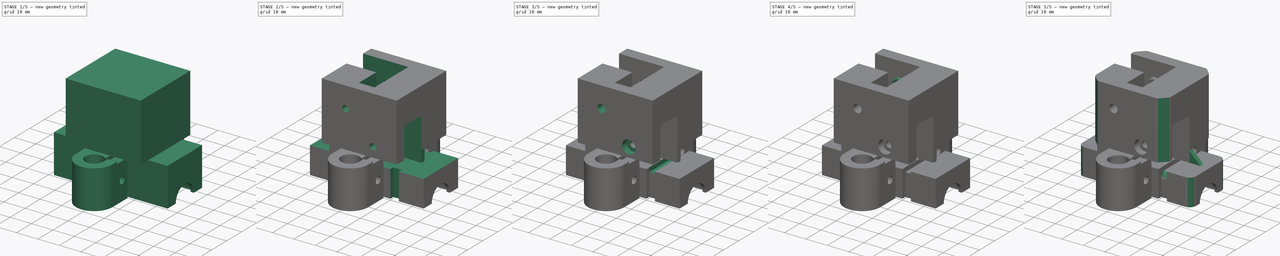
[diagram: build sequence overview — one tinted view per stage of 5, left to right]
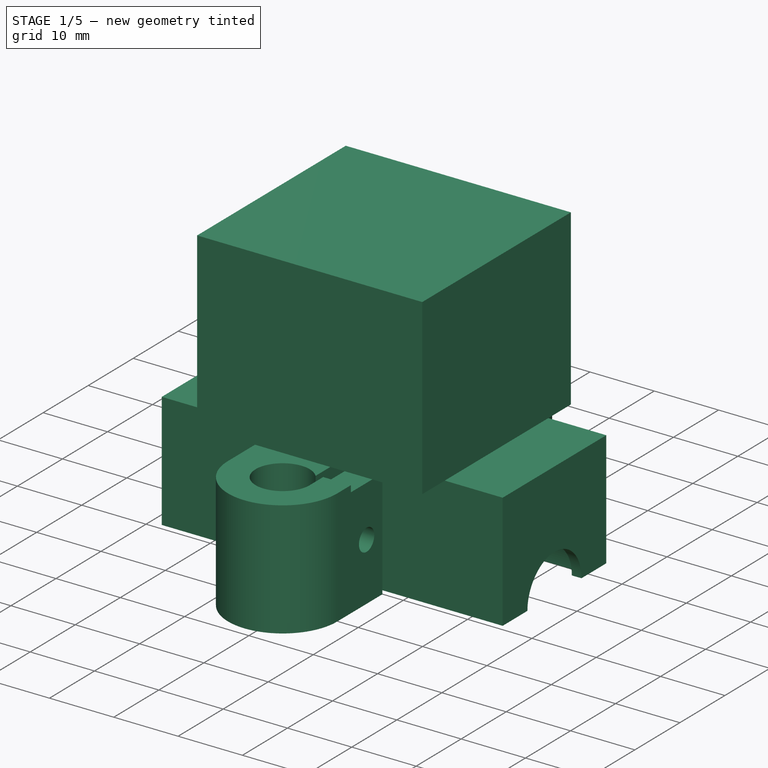
[diagram: stage 1 of 5 — iso view after this stage's code; geometry added in this stage tinted green]
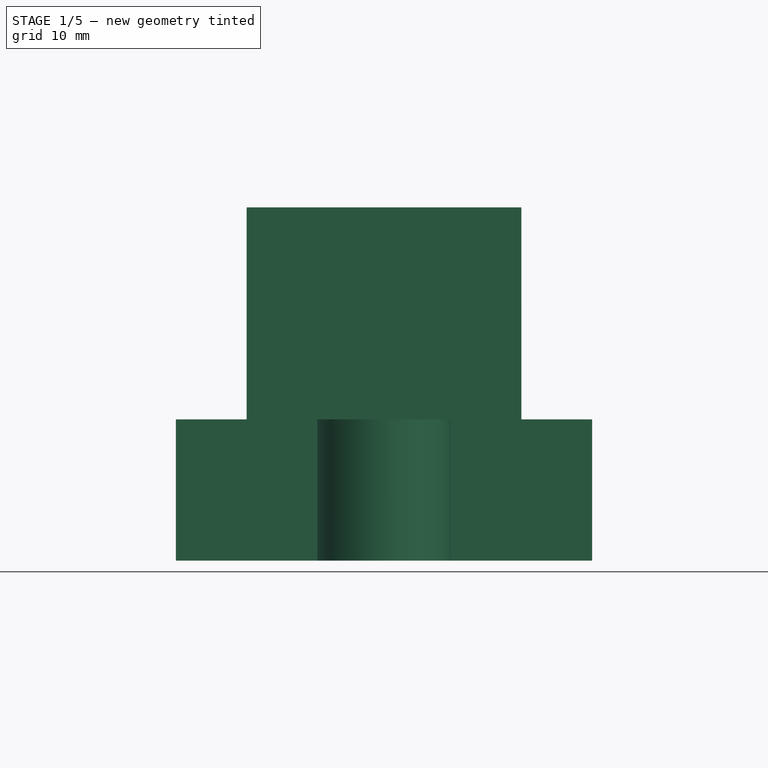
[diagram: stage 1 of 5 — front view after this stage's code; geometry added in this stage tinted green]
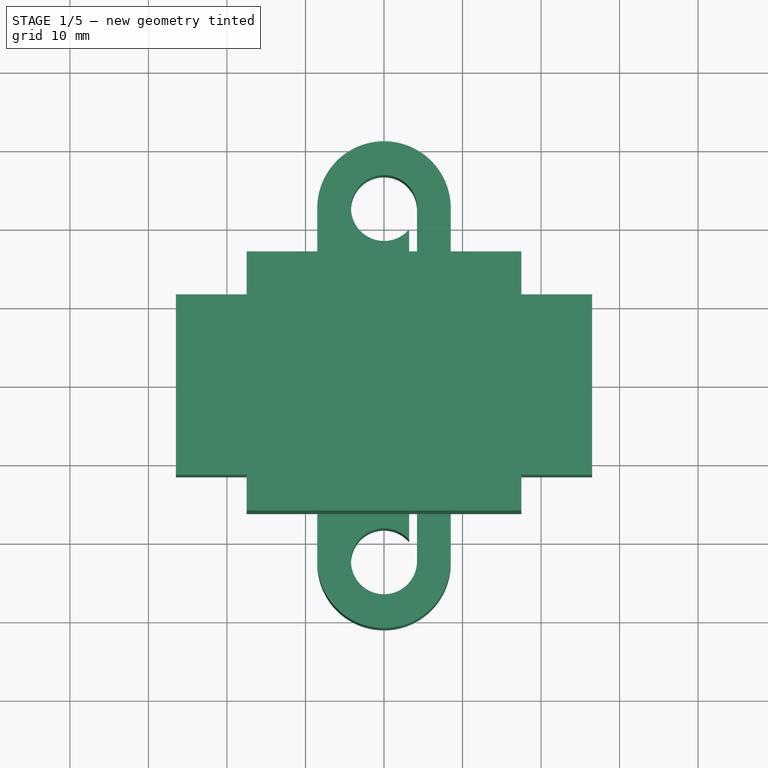
[diagram: stage 1 of 5 — top view after this stage's code; geometry added in this stage tinted green]
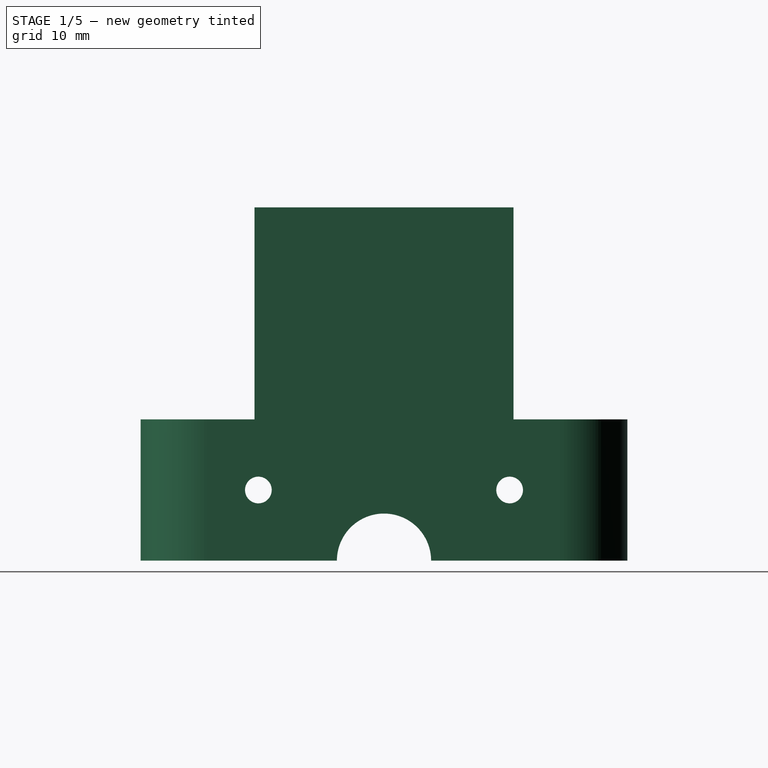
[diagram: stage 1 of 5 — right view after this stage's code; geometry added in this stage tinted green]
FCSTD DOCUMENT  (FreeCAD 0.17R13519 (Git))
Label: Corelia_0_Y_carriage
License: All rights reserved
LicenseURL: http://en.wikipedia.org/wiki/All_rights_reserved
objects: Sketcher::SketchObject×23, PartDesign::Pocket×17, PartDesign::Fillet×7, PartDesign::Pad×6, PartDesign::Chamfer×6, PartDesign::Mirrored×1, PartDesign::Body×1
note: 84 computed .brp shape members not serialized (recipe doc carries the construction recipe); baked Part::Feature solids carry a one-line shape summary decoded from their .brp

FEATURE [Sketcher::SketchObject] Sketch
  MapMode = 5
  Support = -> [XY_Plane]
  sketch-geometry (20):
    g0: ArcOfCircle CenterX=0 CenterY=22.5 CenterZ=0 NormalX=0 NormalY=0 NormalZ=1 AngleXU=0 Radius=4.2 StartAngle=8.19e-09 EndAngle=5.57864
    g1: ArcOfCircle CenterX=0 CenterY=-22.5 CenterZ=0 NormalX=0 NormalY=0 NormalZ=1 AngleXU=0 Radius=4.2 StartAngle=0.704547 EndAngle=6.28319
    g2: LineSegment StartX=-26.5 StartY=11.5 StartZ=0 EndX=-26.5 EndY=-11.5 EndZ=0
    g3: LineSegment StartX=-26.5 StartY=-11.5 StartZ=0 EndX=-8.5 EndY=-11.5 EndZ=0
    g4: LineSegment StartX=-8.5 StartY=-11.5 StartZ=0 EndX=-8.5 EndY=-22.5 EndZ=0
    g5: LineSegment StartX=8.5 StartY=-22.5 StartZ=0 EndX=8.5 EndY=-12.5 EndZ=0
    g6: LineSegment StartX=26.5 StartY=-11.5 StartZ=0 EndX=26.5 EndY=11.5 EndZ=0
    g7: LineSegment StartX=8.5 StartY=12.5 StartZ=0 EndX=8.5 EndY=22.5 EndZ=0
    g8: LineSegment StartX=-8.5 StartY=22.5 StartZ=0 EndX=-8.5 EndY=11.5 EndZ=0
    g9: LineSegment StartX=-8.5 StartY=11.5 StartZ=0 EndX=-26.5 EndY=11.5 EndZ=0
    g10: ArcOfCircle CenterX=0 CenterY=22.5 CenterZ=0 NormalX=0 NormalY=0 NormalZ=1 AngleXU=0 Radius=8.5 StartAngle=0 EndAngle=3.14159
    g11: ArcOfCircle CenterX=0 CenterY=-22.5 CenterZ=0 NormalX=0 NormalY=0 NormalZ=1 AngleXU=0 Radius=8.5 StartAngle=3.14159 EndAngle=6.28319
    g12: LineSegment StartX=4.2 StartY=22.5 StartZ=0 EndX=4.2 EndY=12.5 EndZ=0
    g13: LineSegment StartX=4.2 StartY=12.5 StartZ=0 EndX=8.5 EndY=12.5 EndZ=0
    g14: LineSegment StartX=3.2 StartY=19.7797 StartZ=0 EndX=3.2 EndY=11.5 EndZ=0
    g15: LineSegment StartX=3.2 StartY=11.5 StartZ=0 EndX=26.5 EndY=11.5 EndZ=0
    g16: LineSegment StartX=4.2 StartY=-22.5 StartZ=0 EndX=4.2 EndY=-12.5 EndZ=0
    g17: LineSegment StartX=4.2 StartY=-12.5 StartZ=0 EndX=8.5 EndY=-12.5 EndZ=0
    g18: LineSegment StartX=26.5 StartY=-11.5 StartZ=0 EndX=3.2 EndY=-11.5 EndZ=0
    g19: LineSegment StartX=3.2 StartY=-11.5 StartZ=0 EndX=3.2 EndY=-19.7797 EndZ=0
  constraints (59):
    c: PointOnObject(g0,g-2)
    c: PointOnObject(g1,g-2)
    c: Equal(g1,g0)
    c: Radius(g0) = 4.2
    c: DistanceY(g1,g0) = 45
    c: Symmetric(g0,g1,g-1)
    c: Vertical(g2)
    c: Coincident(g2,g3)
    c: Horizontal(g3)
    c: Coincident(g3,g4)
    c: Vertical(g4)
    c: Vertical(g5)
    c: Vertical(g6)
    c: Vertical(g7)
    c: Vertical(g8)
    c: Coincident(g8,g9)
    c: Coincident(g9,g2)
    c: Horizontal(g9)
    c: Equal(g9,g3)
    c: Equal(g8,g4)
    c: Coincident(g10,g0)
    c: Coincident(g10,g8)
    c: Coincident(g11,g1)
    c: Equal(g10,g11)
    c: Radius(g10) = 8.5
    c: Vertical(g12)
    c: Coincident(g13,g12)
    c: Horizontal(g13)
    c: Vertical(g14)
    c: Coincident(g15,g14)
    c: Horizontal(g15)
    c: Tangent(g12,g0)
    c: Vertical(g16)
    c: Coincident(g16,g17)
    c: Horizontal(g17)
    c: Horizontal(g18)
    c: Coincident(g18,g19)
    c: Vertical(g19)
    c: Tangent(g1,g16)
    c: Coincident(g5,g17)
    c: Coincident(g1,g19)
    c: Coincident(g1,g16)
    c: Tangent(g10,g7) = -1.5708
    c: Coincident(g7,g13)
    c: Coincident(g15,g6)
    c: PointOnObject(g8,g15)
    c: Coincident(g18,g6)
    c: DistanceX(g1,g1) = 1
    c: DistanceY(g5,g6) = 1
    c: Coincident(g0,g12)
    c: Coincident(g0,g14)
    c: Tangent(g11,g5) = -1.5708
    c: Tangent(g11,g4) = -1.5708
    c: DistanceX(g2,g8) = 18
    c: DistanceX(g7,g6) = 18
    c: PointOnObject(g18,g3)
    c: DistanceY(g6,g6) = 23
    c: DistanceY(g6,g7) = 1
    c: DistanceX(g0,g0) = 1
FEATURE [PartDesign::Pad] Pad
  Length = 18
  Length2 = 100
  Profile = -> Sketch
  Type = 0
FEATURE [Sketcher::SketchObject] Sketch001
  MapMode = 5
  Placement = pos=(8.5,0,0) rot=(0.57735,0.57735,0.57735;2.0944rad)
  Support = -> [Pad]
  sketch-geometry (2):
    g0: Circle CenterX=-16 CenterY=9 CenterZ=0 NormalX=0 NormalY=0 NormalZ=1 AngleXU=0 Radius=1.7
    g1: Circle CenterX=16 CenterY=9 CenterZ=0 NormalX=0 NormalY=0 NormalZ=1 AngleXU=0 Radius=1.7
  constraints (5):
    c: Symmetric(g0,g1,g-2)
    c: DistanceX(g0,g1) = 32
    c: DistanceY(g1) = 9
    c: Equal(g0,g1)
    c: Radius(g0) = 1.7
FEATURE [PartDesign::Pocket] Pocket
  BaseFeature = -> Pad
  Length = 5
  Length2 = 100
  Profile = -> Sketch001
  Type = 1
FEATURE [Sketcher::SketchObject] Sketch002
  MapMode = 5
  Placement = pos=(-8.5,0,0) rot=(0.57735,-0.57735,-0.57735;2.0944rad)
  Support = -> [Pocket]
  sketch-geometry (2):
    g0: Circle CenterX=-16 CenterY=9 CenterZ=0 NormalX=0 NormalY=0 NormalZ=1 AngleXU=0 Radius=1.85
    g1: Circle CenterX=16 CenterY=9 CenterZ=0 NormalX=0 NormalY=0 NormalZ=1 AngleXU=0 Radius=1.85
  constraints (5):
    c: Symmetric(g0,g1,g-2)
    c: Radius(g0) = 1.85
    c: Equal(g0,g1)
    c: DistanceY(g0) = 9
    c: DistanceX(g0,g1) = 32
FEATURE [PartDesign::Pocket] Pocket001
  BaseFeature = -> Pocket
  Length = 4
  Length2 = 100
  Profile = -> Sketch002
  Type = 0
FEATURE [Sketcher::SketchObject] Sketch003
  MapMode = 5
  Placement = pos=(0,0,18) rot=(0,0,1;0rad)
  Support = -> [Pocket001]
  sketch-geometry (8):
    g0: LineSegment StartX=4.2 StartY=12.5 StartZ=0 EndX=8.7 EndY=12.5 EndZ=0
    g1: LineSegment StartX=8.7 StartY=12.5 StartZ=0 EndX=8.7 EndY=19.5 EndZ=0
    g2: LineSegment StartX=8.7 StartY=19.5 StartZ=0 EndX=4.2 EndY=19.5 EndZ=0
    g3: LineSegment StartX=4.2 StartY=19.5 StartZ=0 EndX=4.2 EndY=12.5 EndZ=0
    g4: LineSegment StartX=4.2 StartY=-12.5 StartZ=0 EndX=8.7 EndY=-12.5 EndZ=0
    g5: LineSegment StartX=8.7 StartY=-12.5 StartZ=0 EndX=8.7 EndY=-19.5 EndZ=0
    g6: LineSegment StartX=8.7 StartY=-19.5 StartZ=0 EndX=4.2 EndY=-19.5 EndZ=0
    g7: LineSegment StartX=4.2 StartY=-19.5 StartZ=0 EndX=4.2 EndY=-12.5 EndZ=0
  constraints (23):
    c: Coincident(g0,g1)
    c: Coincident(g1,g2)
    c: Coincident(g2,g3)
    c: Coincident(g3,g0)
    c: Horizontal(g0)
    c: Horizontal(g2)
    c: Vertical(g1)
    c: Vertical(g3)
    c: Coincident(g4,g5)
    c: Coincident(g5,g6)
    c: Coincident(g6,g7)
    c: Coincident(g7,g4)
    c: Horizontal(g4)
    c: Horizontal(g6)
    c: Vertical(g5)
    c: Vertical(g7)
    c: DistanceX(g0) = 4.2
    c: DistanceY(g0) = 12.5
    c: DistanceX(g2,g2) = 4.5
    c: DistanceY(g1,g1) = 7
    c: Equal(g0,g4)
    c: Equal(g1,g5)
    c: Symmetric(g0,g4,g-1)
FEATURE [PartDesign::Pocket] Pocket002
  BaseFeature = -> Pocket001
  Length = 1
  Length2 = 100
  Profile = -> Sketch003
  Type = 0
FEATURE [Sketcher::SketchObject] Sketch004
  MapMode = 5
  Placement = pos=(26.5,0,0) rot=(0.57735,0.57735,0.57735;2.0944rad)
  Support = -> [Pocket002]
  sketch-geometry (2):
    g0: ArcOfCircle CenterX=0 CenterY=0 CenterZ=0 NormalX=0 NormalY=0 NormalZ=1 AngleXU=0 Radius=6 StartAngle=0 EndAngle=3.14159
    g1: LineSegment StartX=-6 StartY=0 StartZ=0 EndX=6 EndY=0 EndZ=0
  constraints (6):
    c: Coincident(g0,g-1)
    c: Coincident(g1,g0)
    c: Coincident(g1,g0)
    c: Horizontal(g1)
    c: Radius(g0) = 6
    c: PointOnObject(g0,g-1)
FEATURE [PartDesign::Pocket] Pocket003
  BaseFeature = -> Pocket002
  Length = 5
  Length2 = 100
  Profile = -> Sketch004
  Type = 1
FEATURE [Sketcher::SketchObject] Sketch005
  MapMode = 5
  Placement = pos=(0,0,0) rot=(0.57735,0.57735,0.57735;2.0944rad)
  Support = -> [YZ_Plane]
  sketch-geometry (1):
    g0: Circle CenterX=0 CenterY=0 CenterZ=0 NormalX=0 NormalY=0 NormalZ=1 AngleXU=0 Radius=7.5
  constraints (2):
    c: Coincident(g0,g-1)
    c: Radius(g0) = 7.5
FEATURE [PartDesign::Pocket] Pocket004
  BaseFeature = -> Pocket003
  Length = 50
  Length2 = 100
  Midplane = true
  Profile = -> Sketch005
  Type = 0
FEATURE [Sketcher::SketchObject] Sketch006
  MapMode = 5
  Placement = pos=(0,0,18) rot=(0,0,1;0rad)
  Support = -> [Pocket004]
  sketch-geometry (4):
    g0: LineSegment StartX=-17.5 StartY=16.5 StartZ=0 EndX=17.5 EndY=16.5 EndZ=0
    g1: LineSegment StartX=17.5 StartY=16.5 StartZ=0 EndX=17.5 EndY=-16.5 EndZ=0
    g2: LineSegment StartX=17.5 StartY=-16.5 StartZ=0 EndX=-17.5 EndY=-16.5 EndZ=0
    g3: LineSegment StartX=-17.5 StartY=-16.5 StartZ=0 EndX=-17.5 EndY=16.5 EndZ=0
  constraints (12):
    c: Coincident(g0,g1)
    c: Coincident(g1,g2)
    c: Coincident(g2,g3)
    c: Coincident(g3,g0)
    c: Horizontal(g0)
    c: Horizontal(g2)
    c: Vertical(g1)
    c: Vertical(g3)
    c: DistanceX(g0,g0) = 35
    c: DistanceY(g1,g1) = 33
    c: Symmetric(g0,g0,g-2)
    c: Symmetric(g2,g0,g-1)
FEATURE [PartDesign::Pad] Pad001
  BaseFeature = -> Pocket004
  Length = 27
  Length2 = 100
  Profile = -> Sketch006
  Type = 0
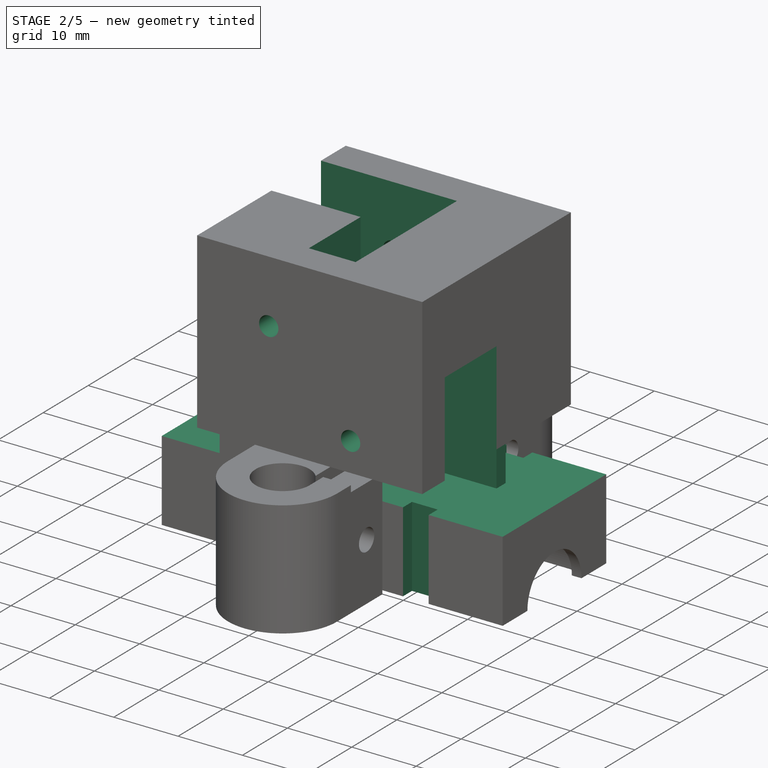
[diagram: stage 2 of 5 — iso view after this stage's code; geometry added in this stage tinted green]
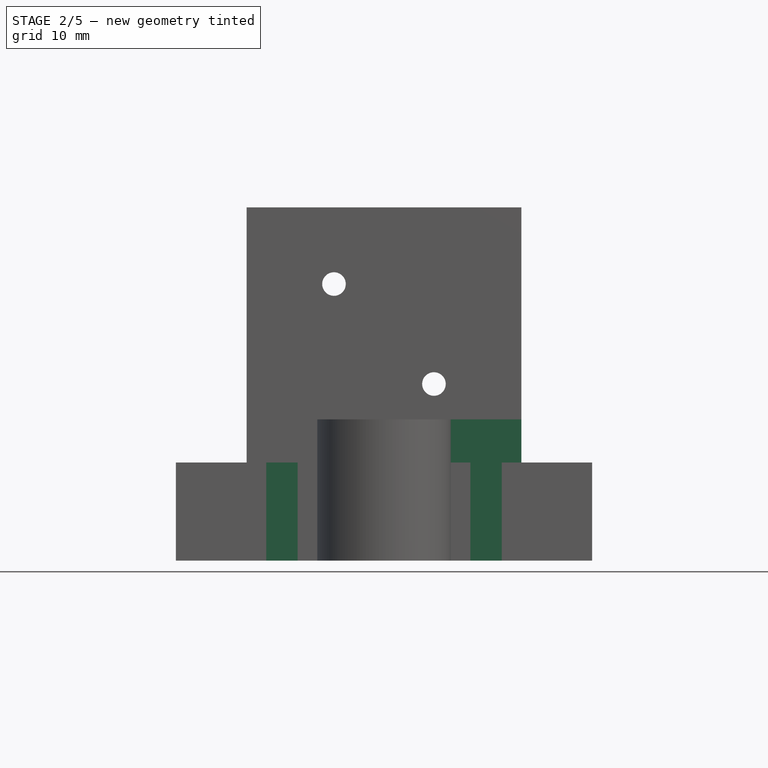
[diagram: stage 2 of 5 — front view after this stage's code; geometry added in this stage tinted green]
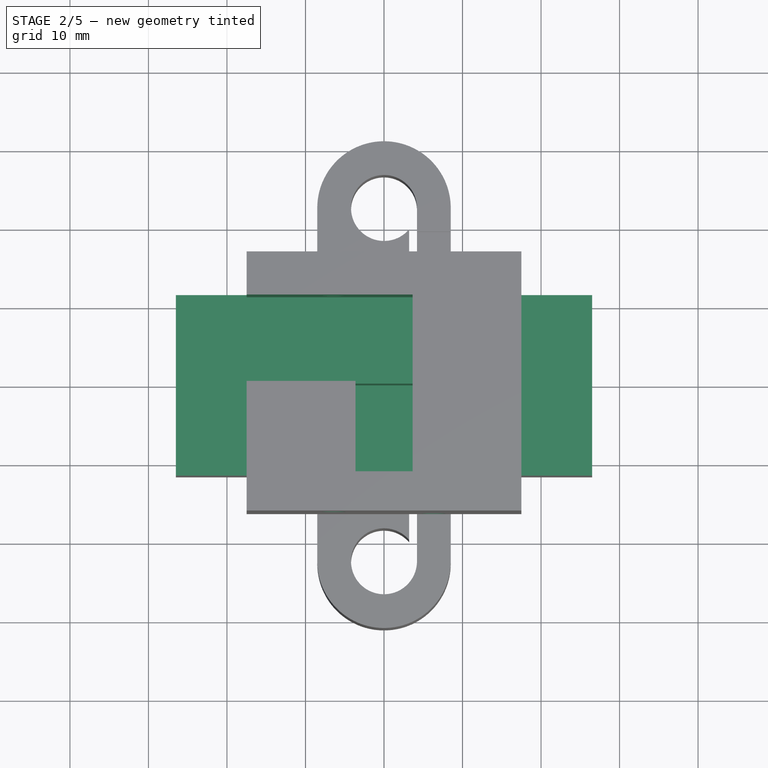
[diagram: stage 2 of 5 — top view after this stage's code; geometry added in this stage tinted green]
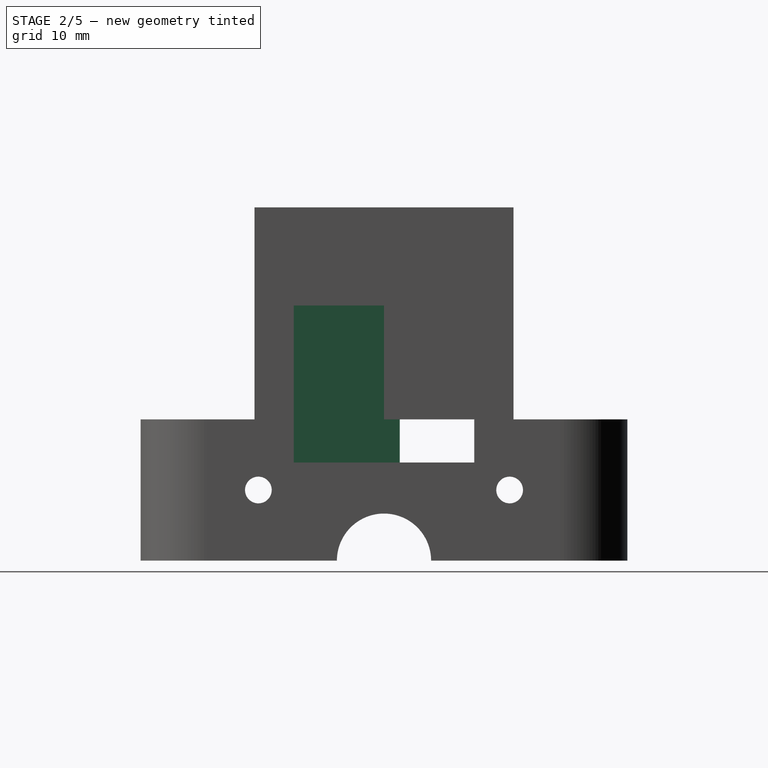
[diagram: stage 2 of 5 — right view after this stage's code; geometry added in this stage tinted green]
FEATURE [Sketcher::SketchObject] Sketch007
  MapMode = 5
  Placement = pos=(26.5,0,0) rot=(0.57735,0.57735,0.57735;2.0944rad)
  Support = -> [Pad001]
  sketch-geometry (4):
    g0: LineSegment StartX=-11.5 StartY=19 StartZ=0 EndX=11.5 EndY=19 EndZ=0
    g1: LineSegment StartX=11.5 StartY=19 StartZ=0 EndX=11.5 EndY=12.5 EndZ=0
    g2: LineSegment StartX=11.5 StartY=12.5 StartZ=0 EndX=-11.5 EndY=12.5 EndZ=0
    g3: LineSegment StartX=-11.5 StartY=12.5 StartZ=0 EndX=-11.5 EndY=19 EndZ=0
  constraints (12):
    c: Coincident(g0,g1)
    c: Coincident(g1,g2)
    c: Coincident(g2,g3)
    c: Coincident(g3,g0)
    c: Horizontal(g0)
    c: Horizontal(g2)
    c: Vertical(g1)
    c: Vertical(g3)
    c: DistanceY(g1,g1) = 6.5
    c: DistanceX(g1) = 11.5
    c: DistanceY(g1) = 12.5
    c: DistanceX(g0,g0) = 23
FEATURE [PartDesign::Pocket] Pocket005
  BaseFeature = -> Pad001
  Length = 0
  Length2 = 100
  Profile = -> Sketch007
  Type = 3
  UpToFace = -> Pad001 [Face34]
FEATURE [PartDesign::Mirrored] Mirrored
  BaseFeature = -> Pocket005
  MirrorPlane = -> YZ_Plane
  Originals = -> [Pocket005]
FEATURE [Sketcher::SketchObject] Sketch008
  MapMode = 5
  Placement = pos=(17.5,0,0) rot=(0.57735,0.57735,0.57735;2.0944rad)
  Support = -> [Mirrored]
  sketch-geometry (4):
    g0: LineSegment StartX=2 StartY=18 StartZ=0 EndX=11.5 EndY=18 EndZ=0
    g1: LineSegment StartX=11.5 StartY=18 StartZ=0 EndX=11.5 EndY=12.5 EndZ=0
    g2: LineSegment StartX=11.5 StartY=12.5 StartZ=0 EndX=2 EndY=12.5 EndZ=0
    g3: LineSegment StartX=2 StartY=12.5 StartZ=0 EndX=2 EndY=18 EndZ=0
  constraints (12):
    c: Coincident(g0,g1)
    c: Coincident(g1,g2)
    c: Coincident(g2,g3)
    c: Coincident(g3,g0)
    c: Horizontal(g0)
    c: Horizontal(g2)
    c: Vertical(g1)
    c: Vertical(g3)
    c: DistanceX(g0,g0) = 9.5
    c: DistanceY(g1,g1) = 5.5
    c: DistanceX(g2) = 2
    c: DistanceY(g2) = 12.5
FEATURE [PartDesign::Pocket] Pocket006
  BaseFeature = -> Mirrored
  Length = 5
  Length2 = 100
  Profile = -> Sketch008
  Type = 1
FEATURE [Sketcher::SketchObject] Sketch009
  MapMode = 5
  Placement = pos=(17.5,0,0) rot=(0.57735,0.57735,0.57735;2.0944rad)
  Support = -> [Pocket006]
  sketch-geometry (4):
    g0: LineSegment StartX=-11.5 StartY=32.5 StartZ=0 EndX=0 EndY=32.5 EndZ=0
    g1: LineSegment StartX=0 StartY=32.5 StartZ=0 EndX=0 EndY=12.5 EndZ=0
    g2: LineSegment StartX=0 StartY=12.5 StartZ=0 EndX=-11.5 EndY=12.5 EndZ=0
    g3: LineSegment StartX=-11.5 StartY=12.5 StartZ=0 EndX=-11.5 EndY=32.5 EndZ=0
  constraints (12):
    c: Coincident(g0,g1)
    c: Coincident(g1,g2)
    c: Coincident(g2,g3)
    c: Coincident(g3,g0)
    c: Horizontal(g0)
    c: Horizontal(g2)
    c: Vertical(g1)
    c: Vertical(g3)
    c: DistanceX(g0,g0) = 11.5
    c: DistanceY(g3,g3) = 20
    c: DistanceY(g1) = 12.5
    c: PointOnObject(g1,g-2)
FEATURE [PartDesign::Pocket] Pocket007
  BaseFeature = -> Pocket006
  Length = 21.14
  Length2 = 100
  Profile = -> Sketch009
  Type = 0
FEATURE [Sketcher::SketchObject] Sketch010
  MapMode = 5
  Placement = pos=(-17.5,0,0) rot=(0.57735,-0.57735,-0.57735;2.0944rad)
  Support = -> [Pocket007]
  sketch-geometry (4):
    g0: LineSegment StartX=-11 StartY=45 StartZ=0 EndX=0 EndY=45 EndZ=0
    g1: LineSegment StartX=0 StartY=45 StartZ=0 EndX=0 EndY=25.23 EndZ=0
    g2: LineSegment StartX=0 StartY=25.23 StartZ=0 EndX=-11 EndY=25.23 EndZ=0
    g3: LineSegment StartX=-11 StartY=25.23 StartZ=0 EndX=-11 EndY=45 EndZ=0
  constraints (12):
    c: Coincident(g0,g1)
    c: Coincident(g1,g2)
    c: Coincident(g2,g3)
    c: Coincident(g3,g0)
    c: Horizontal(g0)
    c: Horizontal(g2)
    c: Vertical(g1)
    c: Vertical(g3)
    c: DistanceY(g3,g3) = 19.77
    c: DistanceX(g0,g0) = 11
    c: PointOnObject(g1,g-2)
    c: DistanceY(g1) = 25.23
FEATURE [PartDesign::Pocket] Pocket008
  BaseFeature = -> Pocket007
  Length = 21.14
  Length2 = 100
  Profile = -> Sketch010
  Type = 0
FEATURE [Sketcher::SketchObject] Sketch011
  MapMode = 5
  Placement = pos=(0,0,45) rot=(0,0,1;0rad)
  Support = -> [Pocket008]
  sketch-geometry (4):
    g0: LineSegment StartX=-3.63 StartY=-11.5 StartZ=0 EndX=3.64 EndY=-11.5 EndZ=0
    g1: LineSegment StartX=3.64 StartY=-11.5 StartZ=0 EndX=3.64 EndY=0 EndZ=0
    g2: LineSegment StartX=3.64 StartY=0 StartZ=0 EndX=-3.63 EndY=0 EndZ=0
    g3: LineSegment StartX=-3.63 StartY=0 StartZ=0 EndX=-3.63 EndY=-11.5 EndZ=0
  constraints (12):
    c: Coincident(g0,g1)
    c: Coincident(g1,g2)
    c: Coincident(g2,g3)
    c: Coincident(g3,g0)
    c: Horizontal(g0)
    c: Horizontal(g2)
    c: Vertical(g1)
    c: Vertical(g3)
    c: PointOnObject(g2,g-1)
    c: DistanceX(g1) = 3.64
    c: DistanceX(g2,g1) = 7.27
    c: DistanceY(g3,g3) = 11.5
FEATURE [PartDesign::Pocket] Pocket009
  BaseFeature = -> Pocket008
  Length = 0
  Length2 = 100
  Profile = -> Sketch011
  Type = 3
  UpToFace = -> Pocket008 [Face50]
FEATURE [Sketcher::SketchObject] Sketch012
  MapMode = 5
  Placement = pos=(0,16.5,0) rot=(0,0.707107,0.707107;3.14159rad)
  Support = -> [Pocket009]
  sketch-geometry (2):
    g0: Circle CenterX=-6.36 CenterY=22.5 CenterZ=0 NormalX=0 NormalY=0 NormalZ=1 AngleXU=0 Radius=1.5
    g1: Circle CenterX=6.37 CenterY=35.23 CenterZ=0 NormalX=0 NormalY=0 NormalZ=1 AngleXU=0 Radius=1.5
  constraints (6):
    c: Equal(g0,g1)
    c: DistanceX(g1) = 6.37
    c: DistanceY(g1) = 35.23
    c: DistanceX(g0) = -6.36
    c: DistanceY(g0) = 22.5
    c: Radius(g1) = 1.5
FEATURE [PartDesign::Pocket] Pocket010
  BaseFeature = -> Pocket009
  Length = 5
  Length2 = 100
  Profile = -> Sketch012
  Type = 1
FEATURE [Sketcher::SketchObject] Sketch013
  MapMode = 5
  Placement = pos=(0,0,0) rot=(1,0,0;3.14159rad)
  Support = -> [Pocket010]
  sketch-geometry (16):
    g0: LineSegment StartX=-15 StartY=11.5 StartZ=0 EndX=-11 EndY=11.5 EndZ=0
    g1: LineSegment StartX=-11 StartY=11.5 StartZ=0 EndX=-11 EndY=9.5 EndZ=0
    g2: LineSegment StartX=-11 StartY=9.5 StartZ=0 EndX=-15 EndY=9.5 EndZ=0
    g3: LineSegment StartX=-15 StartY=9.5 StartZ=0 EndX=-15 EndY=11.5 EndZ=0
    g4: LineSegment StartX=-15 StartY=-9.5 StartZ=0 EndX=-11 EndY=-9.5 EndZ=0
    g5: LineSegment StartX=-11 StartY=-9.5 StartZ=0 EndX=-11 EndY=-11.5 EndZ=0
    g6: LineSegment StartX=-11 StartY=-11.5 StartZ=0 EndX=-15 EndY=-11.5 EndZ=0
    g7: LineSegment StartX=-15 StartY=-11.5 StartZ=0 EndX=-15 EndY=-9.5 EndZ=0
    g8: LineSegment StartX=11 StartY=11.5 StartZ=0 EndX=15 EndY=11.5 EndZ=0
    g9: LineSegment StartX=15 StartY=11.5 StartZ=0 EndX=15 EndY=9.5 EndZ=0
    g10: LineSegment StartX=15 StartY=9.5 StartZ=0 EndX=11 EndY=9.5 EndZ=0
    g11: LineSegment StartX=11 StartY=9.5 StartZ=0 EndX=11 EndY=11.5 EndZ=0
    g12: LineSegment StartX=11 StartY=-9.5 StartZ=0 EndX=15 EndY=-9.5 EndZ=0
    g13: LineSegment StartX=15 StartY=-9.5 StartZ=0 EndX=15 EndY=-11.5 EndZ=0
    g14: LineSegment StartX=15 StartY=-11.5 StartZ=0 EndX=11 EndY=-11.5 EndZ=0
    g15: LineSegment StartX=11 StartY=-11.5 StartZ=0 EndX=11 EndY=-9.5 EndZ=0
  constraints (45):
    c: Coincident(g0,g1)
    c: Coincident(g1,g2)
    c: Coincident(g2,g3)
    c: Coincident(g3,g0)
    c: Horizontal(g0)
    c: Horizontal(g2)
    c: Vertical(g1)
    c: Vertical(g3)
    c: Coincident(g4,g5)
    c: Coincident(g5,g6)
    c: Coincident(g6,g7)
    c: Coincident(g7,g4)
    c: Horizontal(g4)
    c: Horizontal(g6)
    c: Vertical(g5)
    c: Vertical(g7)
    c: Coincident(g8,g9)
    c: Coincident(g9,g10)
    c: Coincident(g10,g11)
    c: Coincident(g11,g8)
    c: Horizontal(g8)
    c: Horizontal(g10)
    c: Vertical(g9)
    c: Vertical(g11)
    c: Coincident(g12,g13)
    c: Coincident(g13,g14)
    c: Coincident(g14,g15)
    c: Coincident(g15,g12)
    c: Horizontal(g12)
    c: Horizontal(g14)
    c: Vertical(g13)
    c: Vertical(g15)
    c: DistanceX(g0,g0) = 4
    c: DistanceY(g3,g3) = 2
    c: DistanceX(g1) = -11
    c: DistanceY(g1) = 9.5
    c: Equal(g1,g11)
    c: Equal(g0,g8)
    c: Equal(g1,g5)
    c: Equal(g5,g15)
    c: Equal(g0,g4)
    c: Equal(g4,g12)
    c: Symmetric(g4,g1,g-1)
    c: Symmetric(g10,g1,g-2)
    c: Symmetric(g4,g12,g-2)
FEATURE [PartDesign::Pocket] Pocket011
  BaseFeature = -> Pocket010
  Length = 12.5
  Length2 = 100
  Profile = -> Sketch013
  Type = 0
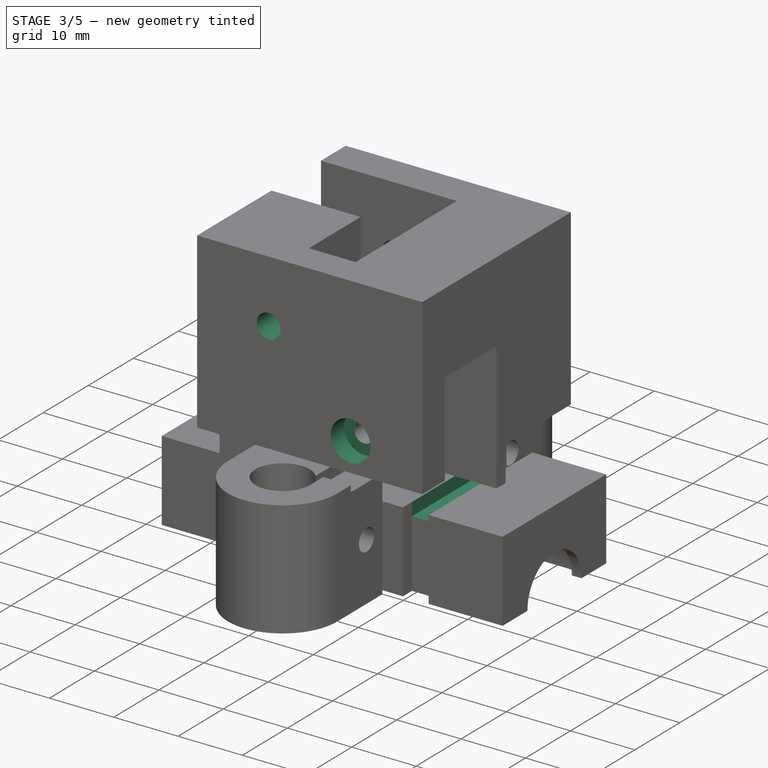
[diagram: stage 3 of 5 — iso view after this stage's code; geometry added in this stage tinted green]
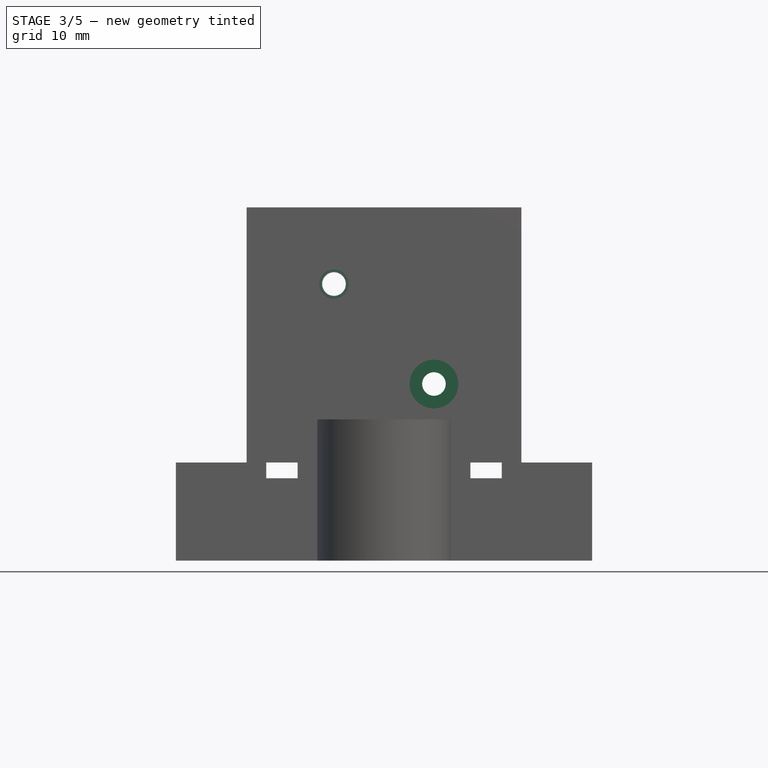
[diagram: stage 3 of 5 — front view after this stage's code; geometry added in this stage tinted green]
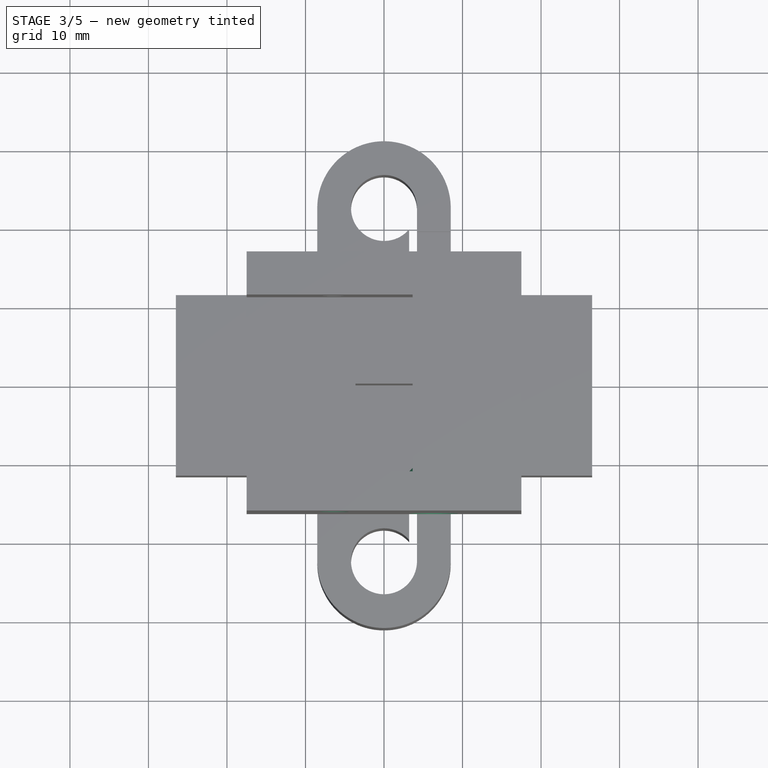
[diagram: stage 3 of 5 — top view after this stage's code; geometry added in this stage tinted green]
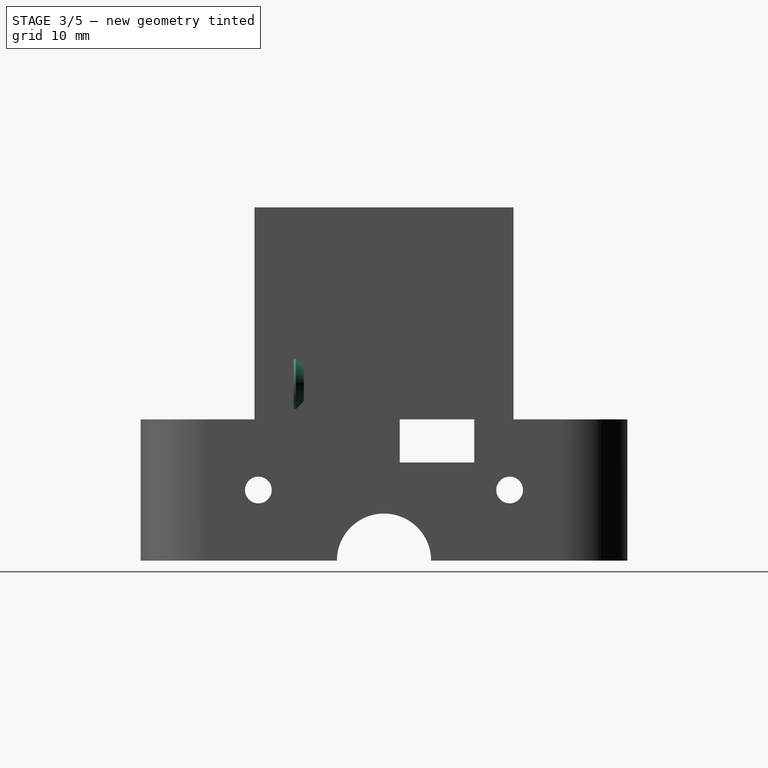
[diagram: stage 3 of 5 — right view after this stage's code; geometry added in this stage tinted green]
FEATURE [Sketcher::SketchObject] Sketch014
  MapMode = 5
  Placement = pos=(0,11.5,0) rot=(0,0.707107,0.707107;3.14159rad)
  Support = -> [Pocket011]
  sketch-geometry (8):
    g0: LineSegment StartX=-11 StartY=12.5 StartZ=0 EndX=-15 EndY=12.5 EndZ=0
    g1: LineSegment StartX=-15 StartY=12.5 StartZ=0 EndX=-15 EndY=10.5 EndZ=0
    g2: LineSegment StartX=-15 StartY=10.5 StartZ=0 EndX=-11 EndY=10.5 EndZ=0
    g3: LineSegment StartX=-11 StartY=10.5 StartZ=0 EndX=-11 EndY=12.5 EndZ=0
    g4: LineSegment StartX=11 StartY=12.5 StartZ=0 EndX=15 EndY=12.5 EndZ=0
    g5: LineSegment StartX=15 StartY=12.5 StartZ=0 EndX=15 EndY=10.5 EndZ=0
    g6: LineSegment StartX=15 StartY=10.5 StartZ=0 EndX=11 EndY=10.5 EndZ=0
    g7: LineSegment StartX=11 StartY=10.5 StartZ=0 EndX=11 EndY=12.5 EndZ=0
  constraints (23):
    c: Coincident(g0,g1)
    c: Coincident(g1,g2)
    c: Coincident(g2,g3)
    c: Coincident(g3,g0)
    c: Horizontal(g0)
    c: Horizontal(g2)
    c: Vertical(g1)
    c: Vertical(g3)
    c: Coincident(g4,g5)
    c: Coincident(g5,g6)
    c: Coincident(g6,g7)
    c: Coincident(g7,g4)
    c: Horizontal(g4)
    c: Horizontal(g6)
    c: Vertical(g5)
    c: Vertical(g7)
    c: DistanceX(g0,g0) = 4
    c: DistanceY(g1,g1) = 2
    c: Equal(g3,g7)
    c: Equal(g0,g4)
    c: Symmetric(g0,g4,g-2)
    c: DistanceX(g0) = -11
    c: DistanceY(g0) = 12.5
FEATURE [PartDesign::Pocket] Pocket012
  BaseFeature = -> Pocket011
  Length = 5
  Length2 = 100
  Profile = -> Sketch014
  Type = 1
FEATURE [Sketcher::SketchObject] Sketch015
  MapMode = 5
  Placement = pos=(0,16.5,0) rot=(0,0.707107,0.707107;3.14159rad)
  Support = -> [Pocket012]
  sketch-geometry (1):
    g0: Circle CenterX=-6.36 CenterY=22.5 CenterZ=0 NormalX=0 NormalY=0 NormalZ=1 AngleXU=0 Radius=1.85
  constraints (3):
    c: DistanceX(g0) = -6.36
    c: DistanceY(g0) = 22.5
    c: Radius(g0) = 1.85
FEATURE [PartDesign::Pocket] Pocket013
  BaseFeature = -> Pocket012
  Length = 5.2
  Length2 = 100
  Profile = -> Sketch015
  Type = 0
FEATURE [Sketcher::SketchObject] Sketch016
  MapMode = 5
  Placement = pos=(0,16.5,0) rot=(0,0.707107,0.707107;3.14159rad)
  Support = -> [Pocket013]
  sketch-geometry (1):
    g0: Circle CenterX=6.37 CenterY=35.23 CenterZ=0 NormalX=0 NormalY=0 NormalZ=1 AngleXU=0 Radius=3.1
  constraints (3):
    c: DistanceX(g0) = 6.37
    c: DistanceY(g0) = 35.23
    c: Radius(g0) = 3.1
FEATURE [PartDesign::Pocket] Pocket014
  BaseFeature = -> Pocket013
  Length = 3
  Length2 = 100
  Profile = -> Sketch016
  Type = 0
FEATURE [Sketcher::SketchObject] Sketch018
  MapMode = 5
  Placement = pos=(0,-16.5,0) rot=(1,0,0;1.5708rad)
  sketch-geometry (1):
    g0: Circle CenterX=6.36 CenterY=22.5 CenterZ=0 NormalX=0 NormalY=0 NormalZ=1 AngleXU=0 Radius=3.1
  constraints (1):
    c: Radius(g0) = 3.1
FEATURE [PartDesign::Pocket] Pocket016
  BaseFeature = -> Pocket014
  Length = 3
  Length2 = 100
  Profile = -> Sketch018
  Type = 0
FEATURE [Sketcher::SketchObject] Sketch019
  MapMode = 5
  Placement = pos=(0,-16.5,0) rot=(1,0,0;1.5708rad)
  Support = -> [Pocket016]
  sketch-geometry (1):
    g0: Circle CenterX=-6.37 CenterY=35.23 CenterZ=0 NormalX=0 NormalY=0 NormalZ=1 AngleXU=0 Radius=1.85
  constraints (3):
    c: DistanceX(g0) = -6.37
    c: DistanceY(g0) = 35.23
    c: Radius(g0) = 1.85
FEATURE [PartDesign::Pocket] Pocket017
  BaseFeature = -> Pocket016
  Length = 5.2
  Length2 = 100
  Profile = -> Sketch019
  Type = 0
FEATURE [Sketcher::SketchObject] Sketch020
  MapMode = 5
  Placement = pos=(0,-11.5,0) rot=(0,0.707107,0.707107;3.14159rad)
  Support = -> [Pocket017]
  sketch-geometry (2):
    g0: Circle CenterX=-6.36 CenterY=22.5 CenterZ=0 NormalX=0 NormalY=0 NormalZ=1 AngleXU=0 Radius=3.2
    g1: Circle CenterX=-6.36 CenterY=22.5 CenterZ=0 NormalX=0 NormalY=0 NormalZ=1 AngleXU=0 Radius=1.5
  constraints (5):
    c: DistanceX(g0) = -6.36
    c: DistanceY(g0) = 22.5
    c: Coincident(g1,g0)
    c: Radius(g1) = 1.5
    c: Radius(g0) = 3.2
FEATURE [PartDesign::Pad] Pad002
  BaseFeature = -> Pocket017
  Length = 1.3
  Length2 = 100
  Profile = -> Sketch020
  Type = 0
FEATURE [PartDesign::Chamfer] Chamfer
  Base = -> Pad002 [Edge317]
  BaseFeature = -> Pad002
  Size = 1
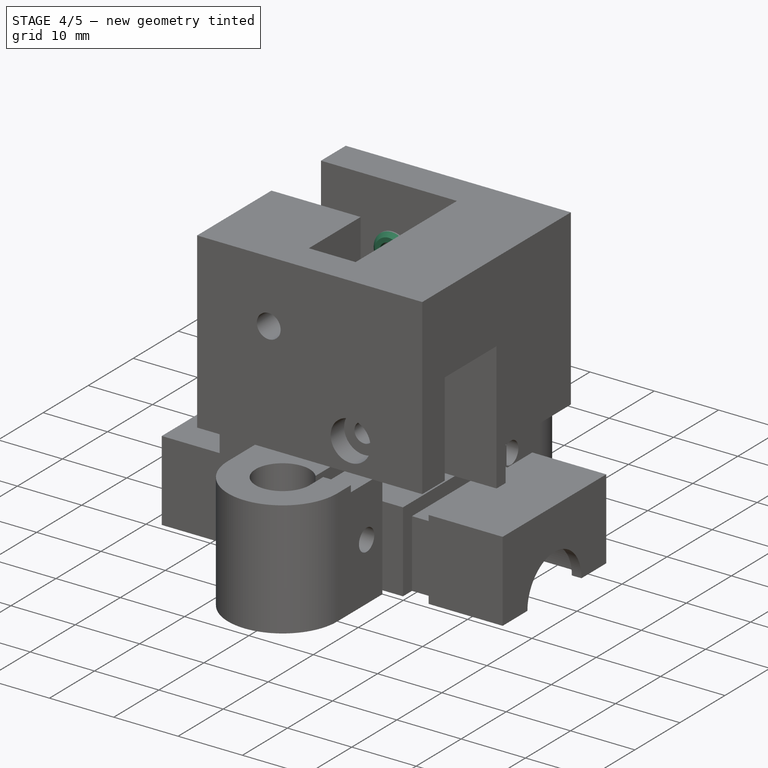
[diagram: stage 4 of 5 — iso view after this stage's code; geometry added in this stage tinted green]
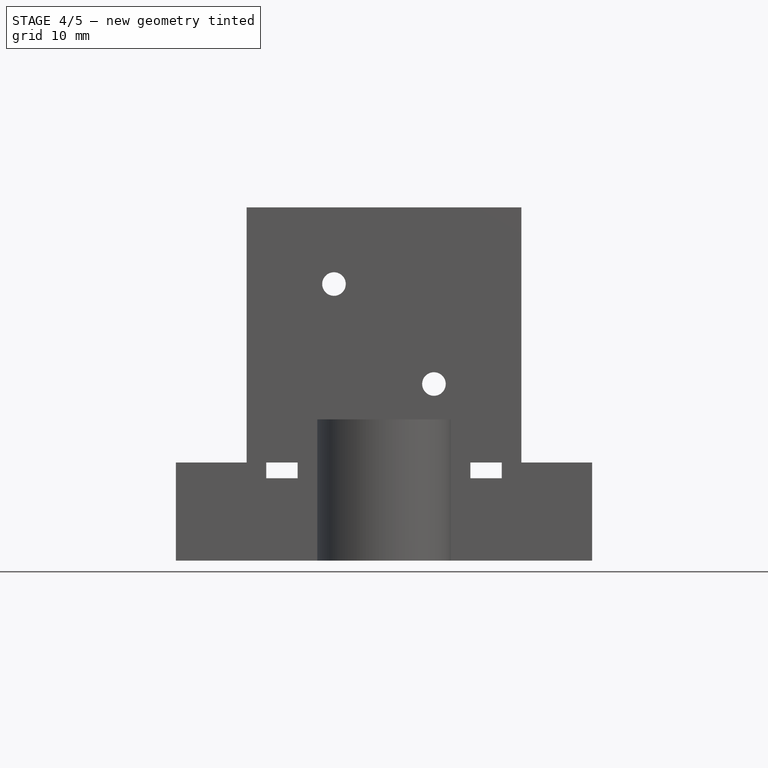
[diagram: stage 4 of 5 — front view after this stage's code; geometry added in this stage tinted green]
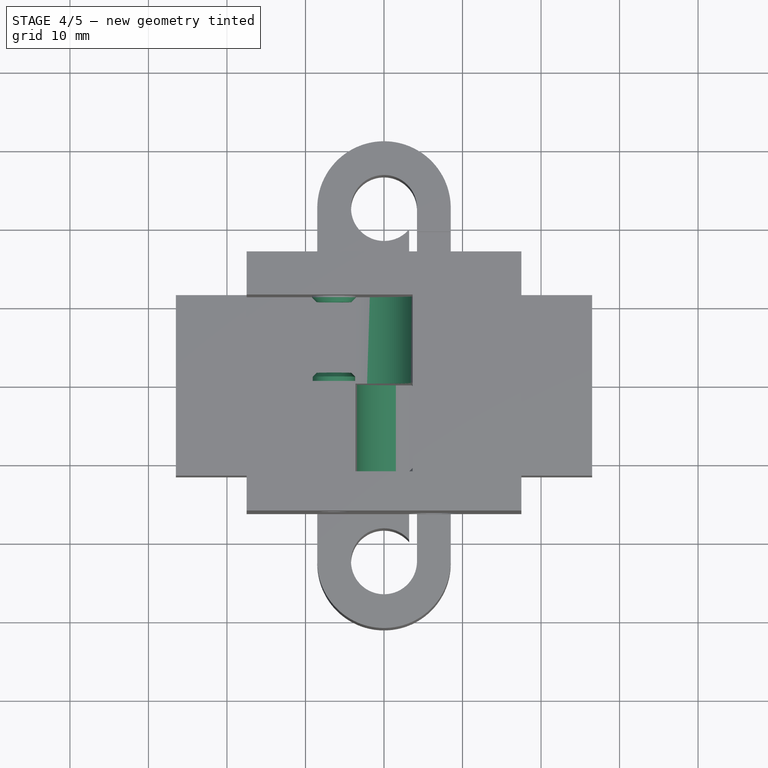
[diagram: stage 4 of 5 — top view after this stage's code; geometry added in this stage tinted green]
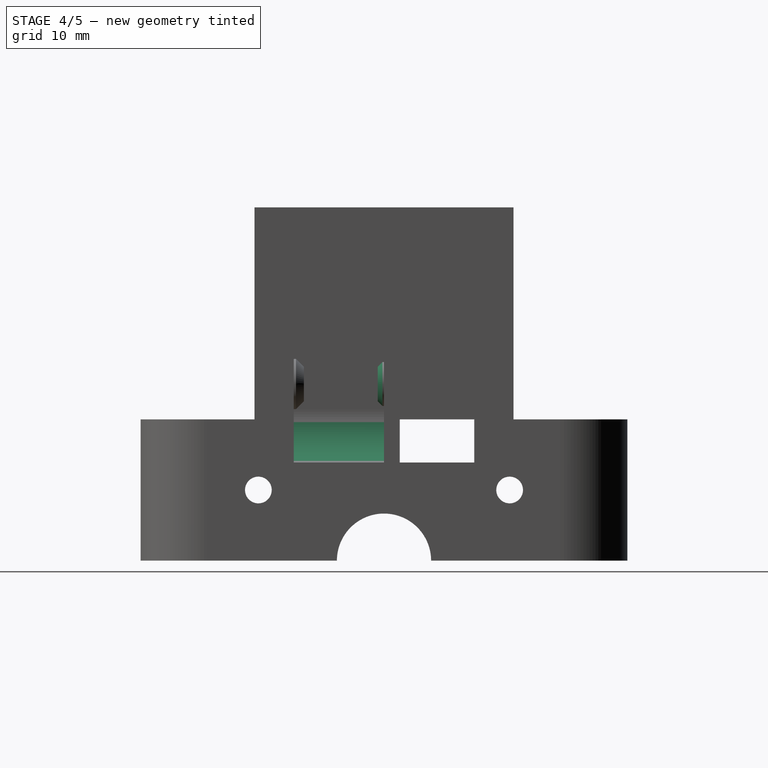
[diagram: stage 4 of 5 — right view after this stage's code; geometry added in this stage tinted green]
FEATURE [Sketcher::SketchObject] Sketch021
  MapMode = 5
  Placement = pos=(0,0,0) rot=(1,0,0;1.5708rad)
  Support = -> [Chamfer]
  sketch-geometry (2):
    g0: Circle CenterX=6.36 CenterY=22.5 CenterZ=0 NormalX=0 NormalY=0 NormalZ=1 AngleXU=0 Radius=1.5
    g1: Circle CenterX=6.36 CenterY=22.5 CenterZ=0 NormalX=0 NormalY=0 NormalZ=1 AngleXU=0 Radius=2.8
  constraints (5):
    c: DistanceX(g0) = 6.36
    c: DistanceY(g0) = 22.5
    c: Radius(g0) = 1.5
    c: Coincident(g1,g0)
    c: Radius(g1) = 2.8
FEATURE [PartDesign::Pad] Pad003
  BaseFeature = -> Chamfer
  Length = 0.8
  Length2 = 100
  Profile = -> Sketch021
  Type = 0
FEATURE [PartDesign::Chamfer] Chamfer001
  Base = -> Pad003 [Edge207]
  BaseFeature = -> Pad003
  Size = 0.6
FEATURE [Sketcher::SketchObject] Sketch022
  MapMode = 5
  Placement = pos=(0,0,0) rot=(0,0.707107,0.707107;3.14159rad)
  Support = -> [Chamfer001]
  sketch-geometry (2):
    g0: Circle CenterX=6.37 CenterY=35.23 CenterZ=0 NormalX=0 NormalY=0 NormalZ=1 AngleXU=0 Radius=1.5
    g1: Circle CenterX=6.37 CenterY=35.23 CenterZ=0 NormalX=0 NormalY=0 NormalZ=1 AngleXU=0 Radius=2.7
  constraints (5):
    c: DistanceX(g0) = 6.37
    c: DistanceY(g0) = 35.23
    c: Radius(g0) = 1.5
    c: Radius(g1) = 2.7
    c: Coincident(g1,g0)
FEATURE [PartDesign::Pad] Pad004
  BaseFeature = -> Chamfer001
  Length = 1.2
  Length2 = 100
  Profile = -> Sketch022
  Type = 0
FEATURE [PartDesign::Chamfer] Chamfer002
  Base = -> Pad004 [Edge195]
  BaseFeature = -> Pad004
  Size = 0.5
FEATURE [Sketcher::SketchObject] Sketch017
  MapMode = 5
  Placement = pos=(0,11,0) rot=(1,0,0;1.5708rad)
  Support = -> [Pocket014]
  sketch-geometry (2):
    g0: Circle CenterX=-6.37 CenterY=35.23 CenterZ=0 NormalX=0 NormalY=0 NormalZ=1 AngleXU=0 Radius=1.5
    g1: Circle CenterX=-6.37 CenterY=35.23 CenterZ=0 NormalX=0 NormalY=0 NormalZ=1 AngleXU=0 Radius=2.8
  constraints (5):
    c: DistanceX(g0) = -6.37
    c: DistanceY(g0) = 35.23
    c: Radius(g0) = 1.5
    c: Coincident(g1,g0)
    c: Radius(g1) = 2.8
FEATURE [PartDesign::Pad] Pad005
  BaseFeature = -> Chamfer002
  Length = 0.8
  Length2 = 100
  Profile = -> Sketch017
  Type = 0
FEATURE [PartDesign::Chamfer] Chamfer003
  Base = -> Pad005 [Edge141]
  BaseFeature = -> Pad005
  Size = 0.6
FEATURE [PartDesign::Fillet] Fillet
  Base = -> Chamfer003 [Edge14]
  BaseFeature = -> Chamfer003
  Radius = 7.2
FEATURE [PartDesign::Fillet] Fillet001
  Base = -> Fillet [Edge87]
  BaseFeature = -> Fillet
  Radius = 6.8
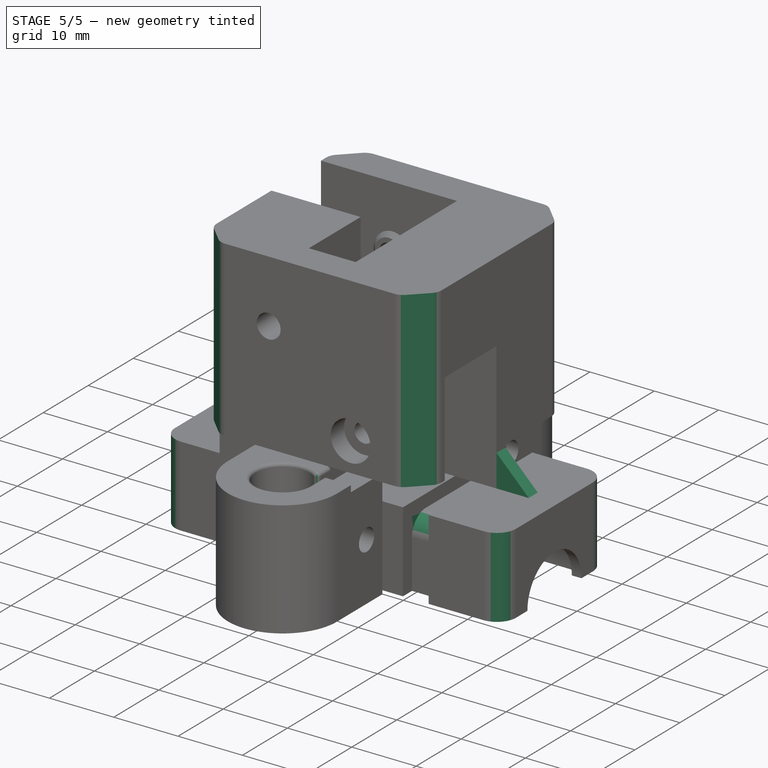
[diagram: stage 5 of 5 — iso view after this stage's code; geometry added in this stage tinted green]
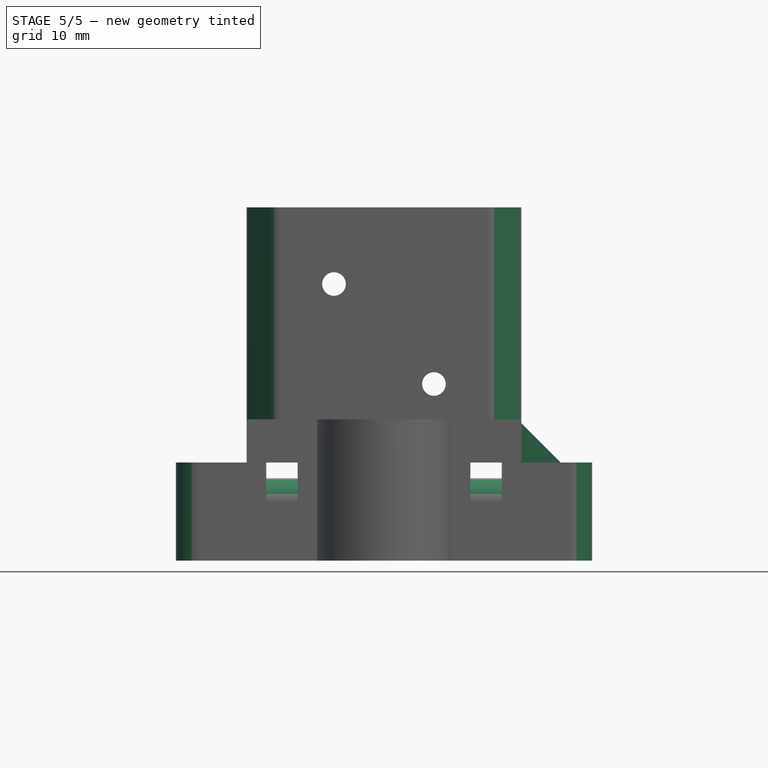
[diagram: stage 5 of 5 — front view after this stage's code; geometry added in this stage tinted green]
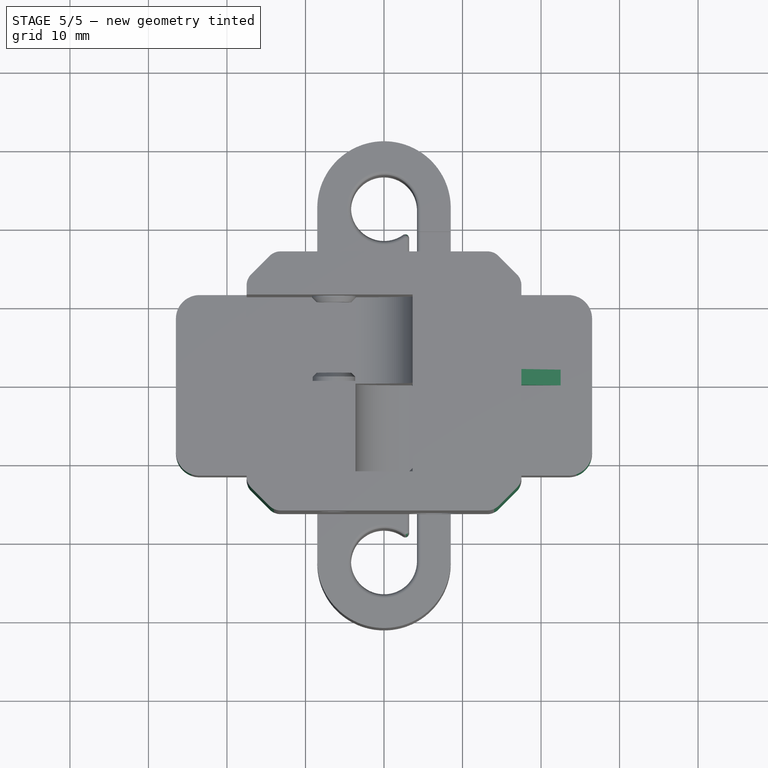
[diagram: stage 5 of 5 — top view after this stage's code; geometry added in this stage tinted green]
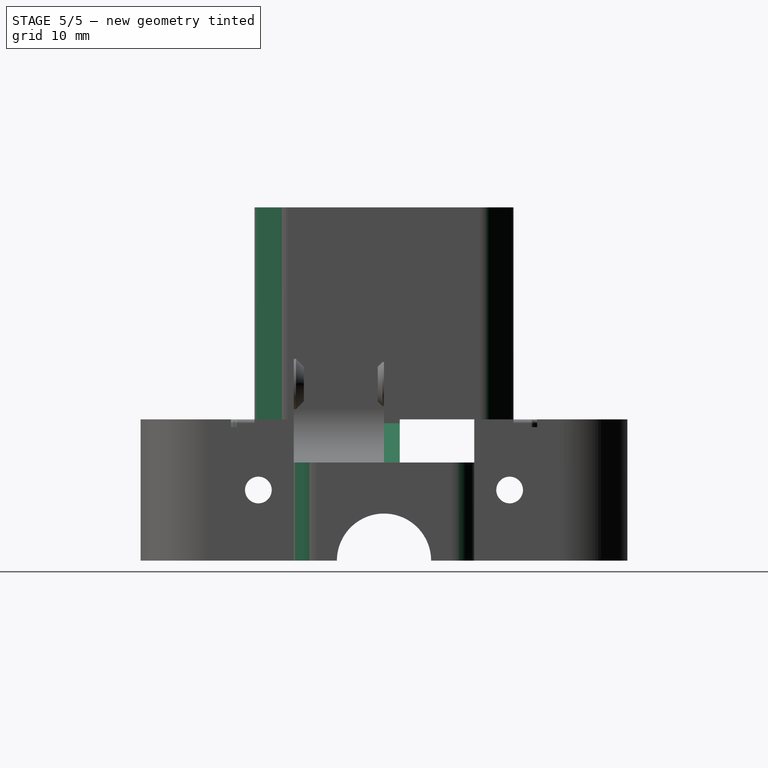
[diagram: stage 5 of 5 — right view after this stage's code; geometry added in this stage tinted green]
FEATURE [PartDesign::Fillet] Fillet002
  Base = -> Fillet001 [Edge177,Edge178,Edge337,Edge264]
  BaseFeature = -> Fillet001
  Radius = 3
FEATURE [PartDesign::Chamfer] Chamfer004
  Base = -> Fillet002 [Edge313,Edge318,Edge270,Edge268]
  BaseFeature = -> Fillet002
  Size = 3.5
FEATURE [PartDesign::Fillet] Fillet003
  Base = -> Chamfer004 [Edge146,Edge126,Edge92,Edge29,Edge16,Edge11,Edge7,Edge41]
  BaseFeature = -> Chamfer004
  Radius = 2
FEATURE [PartDesign::Fillet] Fillet004
  Base = -> Fillet003 [Edge252,Edge256,Edge218,Edge215]
  BaseFeature = -> Fillet003
  Radius = 3
FEATURE [PartDesign::Fillet] Fillet005
  Base = -> Fillet004 [Edge99,Edge243]
  BaseFeature = -> Fillet004
  Radius = 0.5
FEATURE [PartDesign::Chamfer] Chamfer005
  Base = -> Fillet005 [Edge171]
  BaseFeature = -> Fillet005
  Size = 5
FEATURE [PartDesign::Fillet] Fillet006
  Base = -> Chamfer005 [Edge238,Edge241,Edge247,Edge242,Edge244,Edge333,Edge330]
  BaseFeature = -> Chamfer005
  Radius = 0.5
FEATURE [PartDesign::Body] Body
  Group = -> [Sketch,Pad,Sketch001,Pocket,Sketch002,Pocket001,Sketch003,Pocket002,Sketch004,Pocket003,Sketch005,Pocket004,Sketch006,Pad001,Sketch007,Pocket005,Mirrored,Sketch008,Pocket006,Sketch009,Pocket007,Sketch010,Pocket008,Sketch011,Pocket009,Sketch012,Pocket010,Sketch013,Pocket011,Sketch014,Pocket012,Sketch015,Pocket013,Sketch016,Pocket014,Sketch017,Sketch018,Pocket016,Sketch019,Pocket017,Sketch020,+19 more]
  Origin = -> Origin
  Tip = -> Fillet006
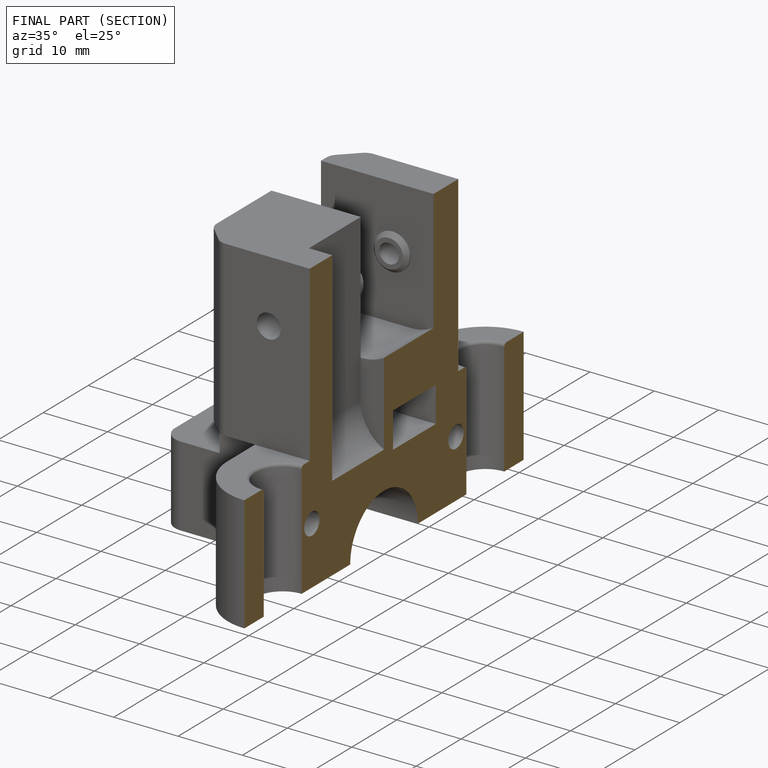
[diagram: finished part — half-section view (interior)]
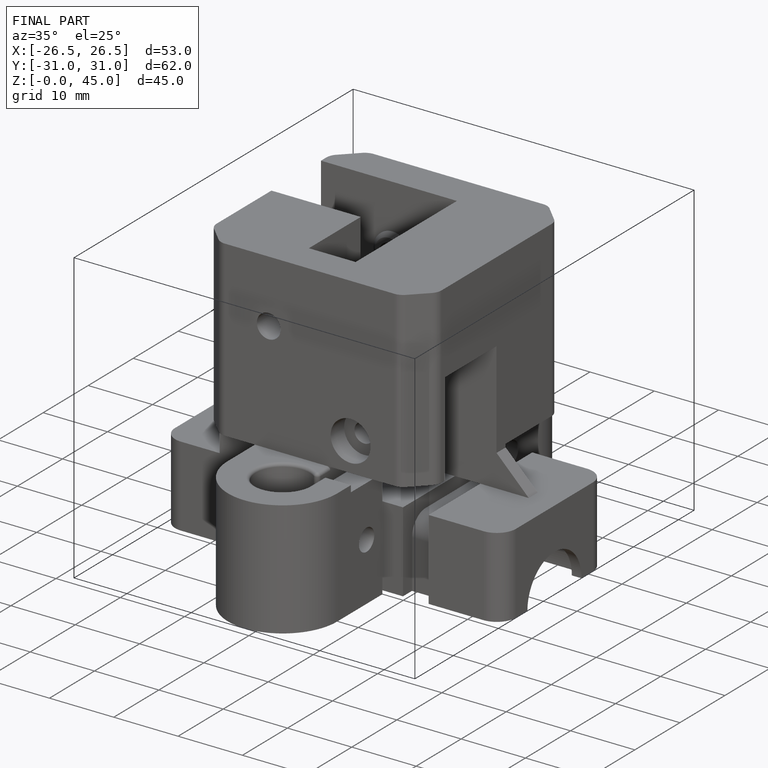
[diagram: finished part — iso view with bounding-box wireframe]
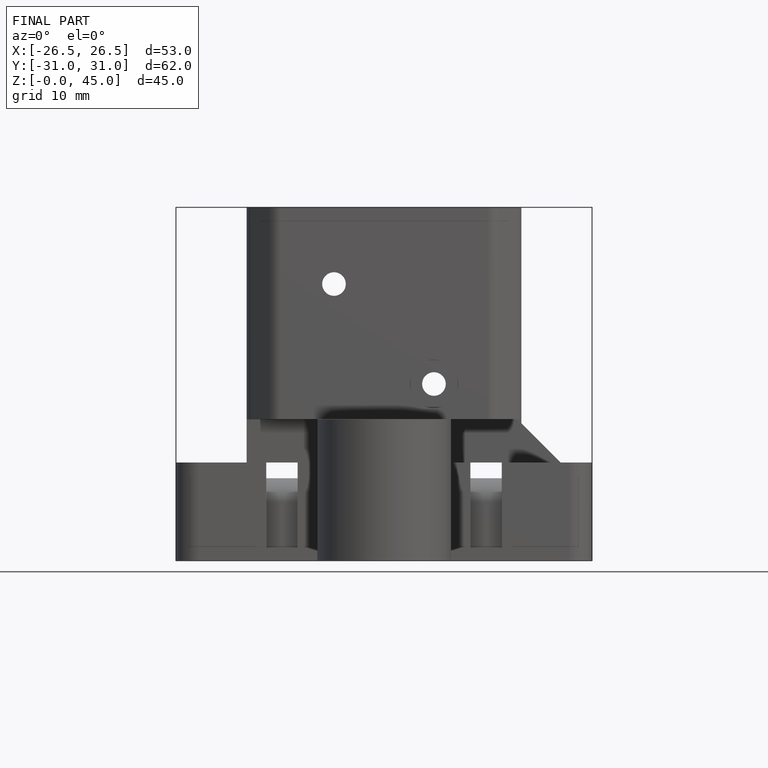
[diagram: finished part — front view with bounding-box wireframe]
